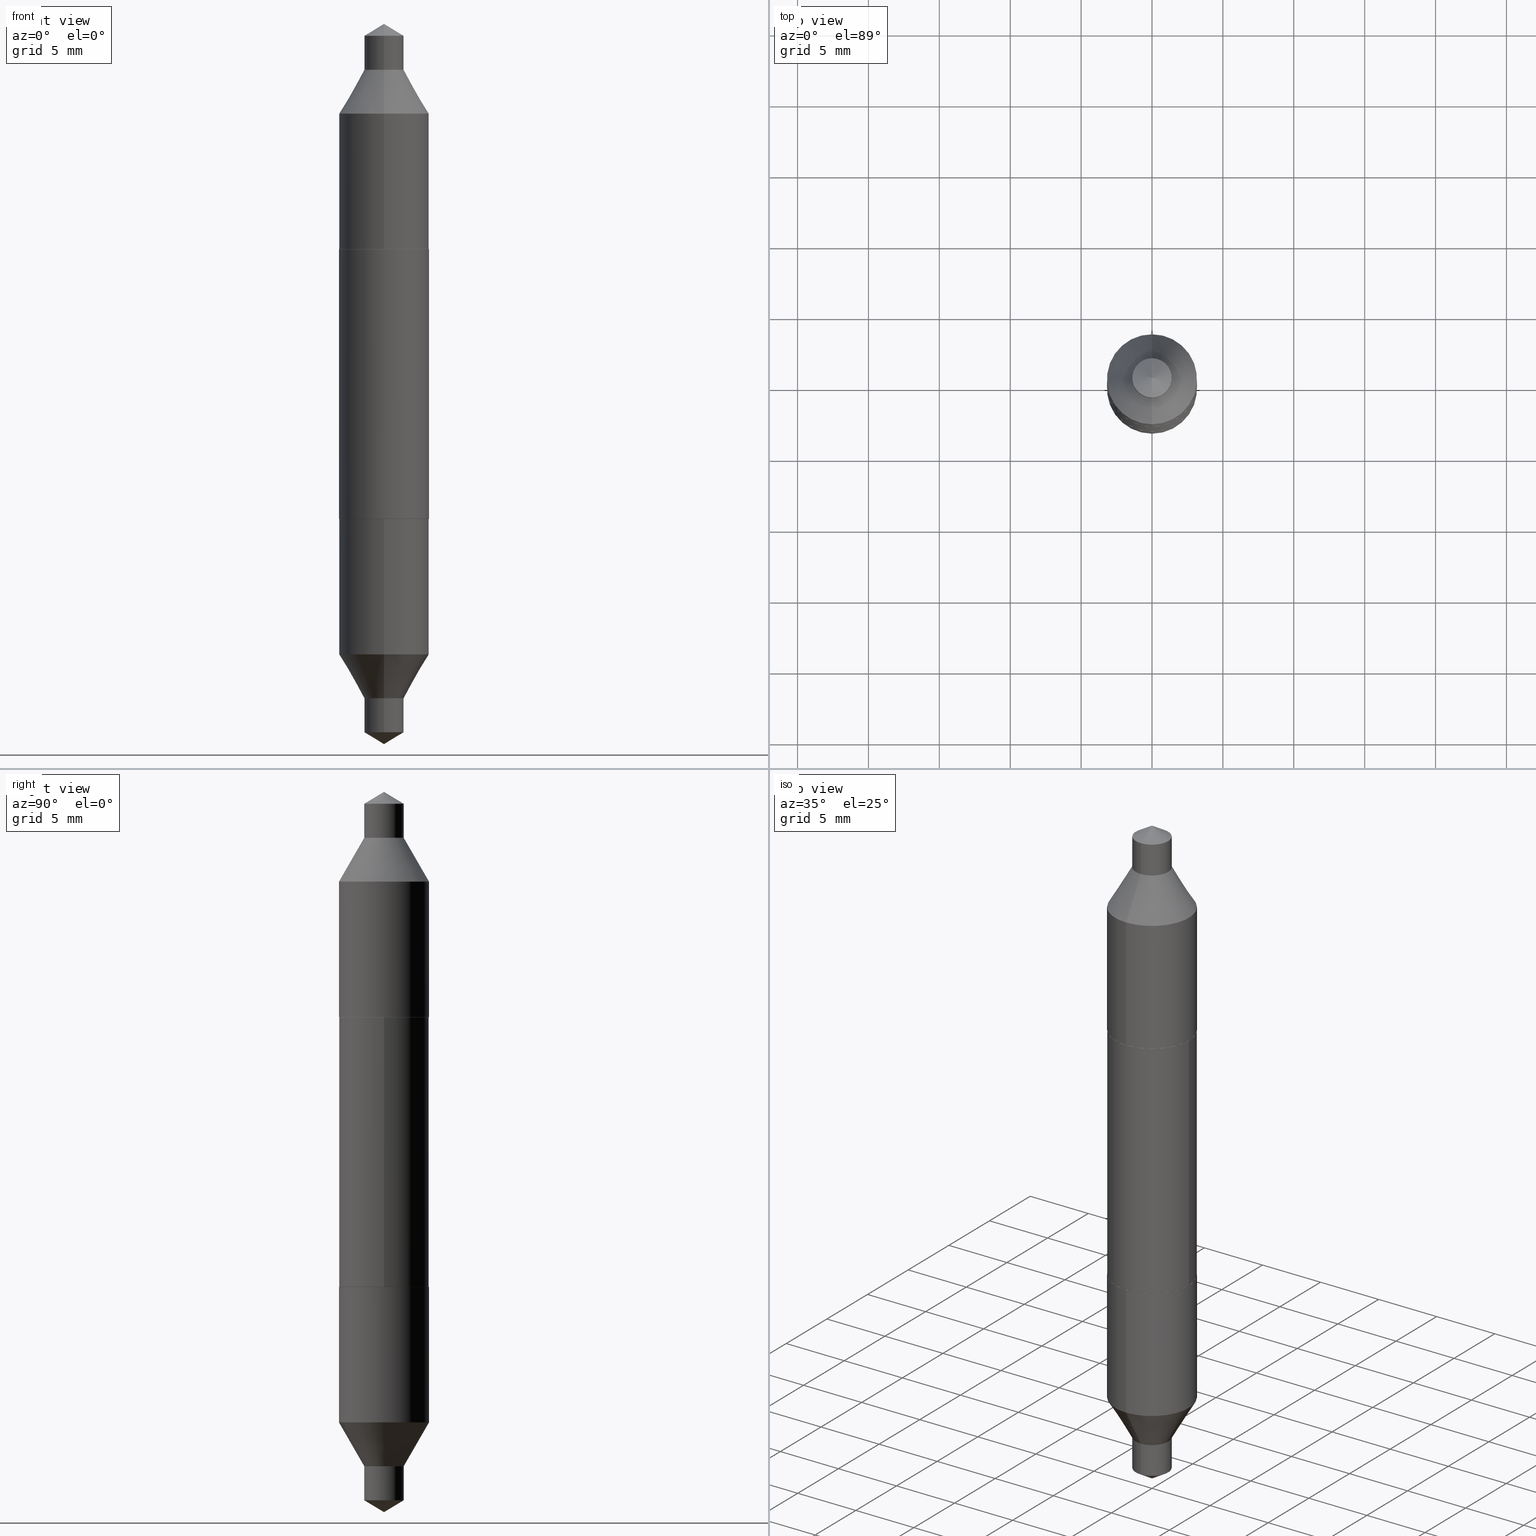
[diagram: canonical four-view strip — front | top / right | iso, engineering-drawing reading convention]
A machine part, canonical four-view strip (front | top / right | iso — engineering-drawing reading convention). The complete STEP part file that produces these views, byte-faithful:
ISO-10303-21;
HEADER;
FILE_DESCRIPTION (( 'STEP AP203' ),
    '1' );
FILE_NAME ('57019.STEP',
    '2024-04-19T15:17:33',
    ( '' ),
    ( '' ),
    'SwSTEP 2.0',
    'SolidWorks 2023',
    '' );
FILE_SCHEMA (( 'CONFIG_CONTROL_DESIGN' ));
ENDSEC;

DATA;
#1 = CARTESIAN_POINT ( 'NONE',  ( 2.454421026224126221E-29, -3.478745012132013039E-15, -1.000000000000000000 ) ) ;
#2 = VERTEX_POINT ( 'NONE', #68 ) ;
#3 = DIRECTION ( 'NONE',  ( -0.7071067811865474617, 2.382254525458707609E-15, -0.7071067811865474617 ) ) ;
#4 = ADVANCED_FACE ( 'NONE', ( #543 ), #602, .T. ) ;
#5 = CARTESIAN_POINT ( 'NONE',  ( -2.129490560523995086E-29, 3.053004212445988016E-15, 0.8726000000000000423 ) ) ;
#6 = DIRECTION ( 'NONE',  ( 1.000000000000000000, -6.982962677686265922E-15, 0.000000000000000000 ) ) ;
#7 = DIRECTION ( 'NONE',  ( 2.436575076777671012E-29, -3.504217665554278126E-15, -1.000000000000000000 ) ) ;
#8 = VERTEX_POINT ( 'NONE', #565 ) ;
#9 = CARTESIAN_POINT ( 'NONE',  ( 3.752692404780801988E-16, 0.05470000000000304480, 0.8725999999999998202 ) ) ;
#10 = CONICAL_SURFACE ( 'NONE', #371, 0.05469999999999999168, 0.5235987755982929315 ) ;
#11 = DIRECTION ( 'NONE',  ( -6.982962677686266711E-15, -1.000000000000000000, 3.278217592397114284E-15 ) ) ;
#12 = LOCAL_TIME ( 11, 17, 33.00000000000000000, #514 ) ;
#13 = PLANE ( 'NONE',  #268 ) ;
#14 = LINE ( 'NONE', #218, #312 ) ;
#15 = EDGE_LOOP ( 'NONE', ( #408, #20, #123 ) ) ;
#16 = APPROVAL_STATUS ( 'not_yet_approved' ) ;
#17 = CARTESIAN_POINT ( 'NONE',  ( -0.1245000000000000689, -4.246797960448542243E-16, -0.3749999999999999445 ) ) ;
#18 = EDGE_CURVE ( 'NONE', #168, #692, #508, .T. ) ;
#19 = ORIENTED_EDGE ( 'NONE', *, *, #227, .T. ) ;
#20 = ORIENTED_EDGE ( 'NONE', *, *, #592, .T. ) ;
#21 = COORDINATED_UNIVERSAL_TIME_OFFSET ( 5, 0, .BEHIND. ) ;
#22 = ORIENTED_EDGE ( 'NONE', *, *, #580, .F. ) ;
#23 = CIRCLE ( 'NONE', #454, 0.1250000000000000278 ) ;
#24 = DIRECTION ( 'NONE',  ( 3.552713678800442554E-15, 0.4999999999999978351, 0.8660254037844399289 ) ) ;
#25 = AXIS2_PLACEMENT_3D ( 'NONE', #523, #422, #203 ) ;
#26 = EDGE_CURVE ( 'NONE', #323, #437, #141, .T. ) ;
#27 = ORIENTED_EDGE ( 'NONE', *, *, #496, .T. ) ;
#28 = DIRECTION ( 'NONE',  ( -2.438088387897960049E-29, 3.491481338843145188E-15, 1.000000000000000000 ) ) ;
#29 = ORIENTED_EDGE ( 'NONE', *, *, #87, .T. ) ;
#30 = ORIENTED_EDGE ( 'NONE', *, *, #685, .T. ) ;
#31 = APPROVAL_STATUS ( 'not_yet_approved' ) ;
#32 = ORIENTED_EDGE ( 'NONE', *, *, #199, .T. ) ;
#33 = VECTOR ( 'NONE', #267, 39.37007874015748143 ) ;
#34 = VECTOR ( 'NONE', #317, 39.37007874015748143 ) ;
#35 = CYLINDRICAL_SURFACE ( 'NONE', #450, 0.1250000000000000278 ) ;
#36 = CARTESIAN_POINT ( 'NONE',  ( 0.000000000000000000, 0.000000000000000000, 0.000000000000000000 ) ) ;
#37 = ADVANCED_FACE ( 'NONE', ( #341 ), #35, .T. ) ;
#38 = DIRECTION ( 'NONE',  ( 1.000000000000000000, -6.982962677686265922E-15, 0.000000000000000000 ) ) ;
#39 = APPROVAL_DATE_TIME ( #91, #401 ) ;
#40 = DIRECTION ( 'NONE',  ( -6.982962677686266711E-15, -1.000000000000000000, 3.278217592397114284E-15 ) ) ;
#41 = ORIENTED_EDGE ( 'NONE', *, *, #628, .T. ) ;
#42 = AXIS2_PLACEMENT_3D ( 'NONE', #54, #597, #270 ) ;
#43 = ADVANCED_FACE ( 'NONE', ( #352 ), #686, .T. ) ;
#44 = CARTESIAN_POINT ( 'NONE',  ( 0.1245000000000000689, 4.399266486942387195E-16, 0.3749999999999999445 ) ) ;
#45 = UNCERTAINTY_MEASURE_WITH_UNIT (LENGTH_MEASURE( 1.000000000000000082E-05 ), #189, 'distance_accuracy_value', 'NONE');
#46 = CYLINDRICAL_SURFACE ( 'NONE', #230, 0.05469999999999999168 ) ;
#47 = ORIENTED_EDGE ( 'NONE', *, *, #115, .T. ) ;
#48 = CLOSED_SHELL ( 'NONE', ( #398, #535, #324, #477, #37, #517, #513, #399, #276 ) ) ;
#49 = CYLINDRICAL_SURFACE ( 'NONE', #680, 0.05469999999999999168 ) ;
#50 = DIRECTION ( 'NONE',  ( -5.985567269335932602E-15, -0.8571673007021159973, -0.5150380749100479383 ) ) ;
#51 = AXIS2_PLACEMENT_3D ( 'NONE', #515, #458, #148 ) ;
#52 = DIRECTION ( 'NONE',  ( -6.982962677686265922E-15, -1.000000000000000000, 3.278217592397115862E-15 ) ) ;
#53 = EDGE_CURVE ( 'NONE', #287, #692, #595, .T. ) ;
#54 = CARTESIAN_POINT ( 'NONE',  ( 9.170508023194260837E-30, -1.309305502066179347E-15, -0.3749999999999999445 ) ) ;
#55 = DIRECTION ( 'NONE',  ( -1.000000000000000000, 6.982962677686265922E-15, -4.876176775795935793E-29 ) ) ;
#56 = DIRECTION ( 'NONE',  ( -6.982962677686265922E-15, -1.000000000000000000, 2.497118824190368833E-15 ) ) ;
#57 = FACE_OUTER_BOUND ( 'NONE', #278, .T. ) ;
#58 = DIRECTION ( 'NONE',  ( 2.436575076777671012E-29, -3.504217665554278126E-15, -1.000000000000000000 ) ) ;
#59 = FACE_OUTER_BOUND ( 'NONE', #237, .T. ) ;
#60 = ADVANCED_FACE ( 'NONE', ( #259 ), #85, .T. ) ;
#61 = VERTEX_POINT ( 'NONE', #66 ) ;
#62 = DIRECTION ( 'NONE',  ( 2.436575076777671012E-29, -3.504217665554278126E-15, -1.000000000000000000 ) ) ;
#63 = AXIS2_PLACEMENT_3D ( 'NONE', #155, #315, #55 ) ;
#64 = DIRECTION ( 'NONE',  ( -2.454362535592602182E-29, 3.478745012132013433E-15, 1.000000000000000000 ) ) ;
#65 = FACE_OUTER_BOUND ( 'NONE', #334, .T. ) ;
#66 = CARTESIAN_POINT ( 'NONE',  ( 8.881784197001435734E-16, 0.1249999999999986816, -0.3750000000000003886 ) ) ;
#67 = ORIENTED_EDGE ( 'NONE', *, *, #104, .F. ) ;
#68 = CARTESIAN_POINT ( 'NONE',  ( 3.886668764607984577E-16, 0.05469999999999661938, -0.9671329241391928289 ) ) ;
#69 = SECURITY_CLASSIFICATION_LEVEL ( 'unclassified' ) ;
#70 = ORIENTED_EDGE ( 'NONE', *, *, #143, .T. ) ;
#71 = DIRECTION ( 'NONE',  ( 0.7071067811865474617, -7.406550393246804314E-15, -0.7071067811865474617 ) ) ;
#72 = DATE_AND_TIME ( #331, #666 ) ;
#73 = EDGE_LOOP ( 'NONE', ( #86, #183, #379, #156 ) ) ;
#74 = ADVANCED_FACE ( 'NONE', ( #263 ), #170, .T. ) ;
#75 = EDGE_LOOP ( 'NONE', ( #655, #307 ) ) ;
#76 = FACE_OUTER_BOUND ( 'NONE', #385, .T. ) ;
#77 = APPLICATION_PROTOCOL_DEFINITION ( 'international standard', 'config_control_design', 1994, #164 ) ;
#78 = EDGE_CURVE ( 'NONE', #205, #664, #469, .T. ) ;
#79 = VERTEX_POINT ( 'NONE', #667 ) ;
#80 = VERTEX_POINT ( 'NONE', #606 ) ;
#81 = APPLICATION_PROTOCOL_DEFINITION ( 'international standard', 'config_control_design', 1994, #119 ) ;
#82 = ORIENTED_EDGE ( 'NONE', *, *, #26, .F. ) ;
#83 = ORIENTED_EDGE ( 'NONE', *, *, #106, .F. ) ;
#84 = ORIENTED_EDGE ( 'NONE', *, *, #106, .T. ) ;
#85 = CONICAL_SURFACE ( 'NONE', #658, 65.52281426576900003, 1.029744258676658308 ) ;
#86 = ORIENTED_EDGE ( 'NONE', *, *, #640, .F. ) ;
#87 = EDGE_CURVE ( 'NONE', #2, #79, #587, .T. ) ;
#88 = DIRECTION ( 'NONE',  ( -2.445468806185136597E-29, 3.491481338843145583E-15, 1.000000000000000000 ) ) ;
#89 = ORGANIZATION ( 'UNSPECIFIED', 'UNSPECIFIED', '' ) ;
#90 = DIRECTION ( 'NONE',  ( 2.436575076777671012E-29, -3.504217665554278126E-15, -1.000000000000000000 ) ) ;
#91 = DATE_AND_TIME ( #459, #12 ) ;
#92 = CARTESIAN_POINT ( 'NONE',  ( 2.370359667417557100E-29, -3.369184958434540191E-15, -0.9671329241391927178 ) ) ;
#93 = ORIENTED_EDGE ( 'NONE', *, *, #229, .F. ) ;
#94 = EDGE_CURVE ( 'NONE', #445, #326, #314, .T. ) ;
#95 = CARTESIAN_POINT ( 'NONE',  ( 9.170508023194260837E-30, -1.309305502066179347E-15, -0.3749999999999999445 ) ) ;
#96 = ORIENTED_EDGE ( 'NONE', *, *, #227, .F. ) ;
#97 = CIRCLE ( 'NONE', #190, 0.1250000000000000555 ) ;
#98 = APPROVAL_PERSON_ORGANIZATION ( #505, #294, #238 ) ;
#99 = CARTESIAN_POINT ( 'NONE',  ( -2.359827127416466631E-29, 3.384268155191050282E-15, 0.9671329241391927178 ) ) ;
#100 = CARTESIAN_POINT ( 'NONE',  ( 9.170508023194260837E-30, -1.309305502066179347E-15, -0.3749999999999999445 ) ) ;
#101 = ORIENTED_EDGE ( 'NONE', *, *, #484, .T. ) ;
#102 = CARTESIAN_POINT ( 'NONE',  ( 9.170508023194260837E-30, -1.309305502066179347E-15, -0.3749999999999999445 ) ) ;
#103 = DIRECTION ( 'NONE',  ( -2.436575076777671012E-29, 3.504217665554278126E-15, 1.000000000000000000 ) ) ;
#104 = EDGE_CURVE ( 'NONE', #105, #79, #364, .T. ) ;
#105 = VERTEX_POINT ( 'NONE', #648 ) ;
#106 = EDGE_CURVE ( 'NONE', #391, #269, #541, .T. ) ;
#107 = DIRECTION ( 'NONE',  ( -2.454362535592602182E-29, 3.478745012132013039E-15, 1.000000000000000000 ) ) ;
#108 = ORIENTED_EDGE ( 'NONE', *, *, #262, .F. ) ;
#109 = AXIS2_PLACEMENT_3D ( 'NONE', #649, #657, #319 ) ;
#110 = AXIS2_PLACEMENT_3D ( 'NONE', #301, #253, #468 ) ;
#111 = DIRECTION ( 'NONE',  ( -2.445468806185136597E-29, 3.491481338843145583E-15, 1.000000000000000000 ) ) ;
#112 = CARTESIAN_POINT ( 'NONE',  ( -2.129490560523995086E-29, 3.053004212445988016E-15, 0.8726000000000000423 ) ) ;
#113 = FACE_OUTER_BOUND ( 'NONE', #455, .T. ) ;
#114 = PRODUCT_DEFINITION ( 'UNKNOWN', '', #293, #297 ) ;
#115 = EDGE_CURVE ( 'NONE', #79, #388, #439, .T. ) ;
#116 = ORIENTED_EDGE ( 'NONE', *, *, #316, .F. ) ;
#117 = DIRECTION ( 'NONE',  ( -2.454362535592602182E-29, 3.478745012132013039E-15, 1.000000000000000000 ) ) ;
#118 = DIRECTION ( 'NONE',  ( 6.982962677686265922E-15, 1.000000000000000000, -3.504217665554278126E-15 ) ) ;
#119 = APPLICATION_CONTEXT ( 'configuration controlled 3d designs of mechanical parts and assemblies' ) ;
#120 = CARTESIAN_POINT ( 'NONE',  ( 3.752692404780935108E-16, 0.05470000000000129620, 0.3749999999999997780 ) ) ;
#121 = ORIENTED_EDGE ( 'NONE', *, *, #496, .F. ) ;
#122 = AXIS2_PLACEMENT_3D ( 'NONE', #524, #656, #375 ) ;
#123 = ORIENTED_EDGE ( 'NONE', *, *, #448, .F. ) ;
#124 = CALENDAR_DATE ( 2024, 19, 4 ) ;
#125 = EDGE_CURVE ( 'NONE', #8, #80, #274, .T. ) ;
#126 = LINE ( 'NONE', #344, #697 ) ;
#127 = VERTEX_POINT ( 'NONE', #670 ) ;
#128 = FACE_OUTER_BOUND ( 'NONE', #668, .T. ) ;
#129 = ADVANCED_FACE ( 'NONE', ( #128 ), #525, .T. ) ;
#130 = ORIENTED_EDGE ( 'NONE', *, *, #369, .T. ) ;
#131 = DATE_AND_TIME ( #393, #178 ) ;
#132 = VECTOR ( 'NONE', #173, 39.37007874015748854 ) ;
#133 = CIRCLE ( 'NONE', #252, 0.1250000000000000278 ) ;
#134 = ORIENTED_EDGE ( 'NONE', *, *, #430, .T. ) ;
#135 = CALENDAR_DATE ( 2024, 19, 4 ) ;
#136 = ADVANCED_FACE ( 'NONE', ( #76 ), #583, .T. ) ;
#137 = CARTESIAN_POINT ( 'NONE',  ( -3.819680584694478085E-16, -0.05469999999999868717, 0.3750000000000001665 ) ) ;
#138 = DIRECTION ( 'NONE',  ( 1.000000000000000000, -6.982962677686265922E-15, 4.876176775795935232E-29 ) ) ;
#139 = AXIS2_PLACEMENT_3D ( 'NONE', #281, #332, #554 ) ;
#140 = VECTOR ( 'NONE', #498, 39.37007874015748854 ) ;
#141 = LINE ( 'NONE', #402, #481 ) ;
#142 = CARTESIAN_POINT ( 'NONE',  ( -1.832805450914712624E-29, 2.626319554908296624E-15, 0.7508368282279060946 ) ) ;
#143 = EDGE_CURVE ( 'NONE', #326, #269, #23, .T. ) ;
#144 = FACE_OUTER_BOUND ( 'NONE', #15, .T. ) ;
#145 = ORIENTED_EDGE ( 'NONE', *, *, #53, .F. ) ;
#146 = MANIFOLD_SOLID_BREP ( 'Body-Move/Copy2[3]', #506 ) ;
#147 = DIRECTION ( 'NONE',  ( -6.982962677686265922E-15, -1.000000000000000000, 3.278217592397115073E-15 ) ) ;
#148 = DIRECTION ( 'NONE',  ( 1.000000000000000000, -6.982962677686265922E-15, 4.876176775795935232E-29 ) ) ;
#149 = EDGE_LOOP ( 'NONE', ( #392, #483, #449, #333 ) ) ;
#150 = CIRCLE ( 'NONE', #241, 0.05469999999999999168 ) ;
#151 = AXIS2_PLACEMENT_3D ( 'NONE', #598, #696, #482 ) ;
#152 = LINE ( 'NONE', #642, #216 ) ;
#153 = CC_DESIGN_PERSON_AND_ORGANIZATION_ASSIGNMENT ( #550, #336, ( #114 ) ) ;
#154 = EDGE_CURVE ( 'NONE', #320, #8, #212, .T. ) ;
#155 = CARTESIAN_POINT ( 'NONE',  ( 9.170508023194260837E-30, -1.309305502066179347E-15, -0.3749999999999999445 ) ) ;
#156 = ORIENTED_EDGE ( 'NONE', *, *, #421, .F. ) ;
#157 = PRODUCT_RELATED_PRODUCT_CATEGORY ( 'detail', '', ( #589 ) ) ;
#158 = CARTESIAN_POINT ( 'NONE',  ( 3.752692404780790648E-16, 0.05470000000000337786, 0.9671329241391926068 ) ) ;
#159 = CYLINDRICAL_SURFACE ( 'NONE', #360, 0.1250000000000000278 ) ;
#160 = CIRCLE ( 'NONE', #631, 0.05469999999999999168 ) ;
#161 = VECTOR ( 'NONE', #381, 39.37007874015748143 ) ;
#162 = DIRECTION ( 'NONE',  ( 6.982962677686265922E-15, 1.000000000000000000, -3.478745012132013433E-15 ) ) ;
#163 = EDGE_CURVE ( 'NONE', #672, #61, #604, .T. ) ;
#164 = APPLICATION_CONTEXT ( 'configuration controlled 3d designs of mechanical parts and assemblies' ) ;
#165 = FACE_OUTER_BOUND ( 'NONE', #432, .T. ) ;
#166 = ORIENTED_EDGE ( 'NONE', *, *, #420, .F. ) ;
#167 = DIRECTION ( 'NONE',  ( 2.436575076777671012E-29, -3.504217665554278126E-15, -1.000000000000000000 ) ) ;
#168 = VERTEX_POINT ( 'NONE', #660 ) ;
#169 = DIRECTION ( 'NONE',  ( -2.445468806185136597E-29, 3.491481338843145583E-15, 1.000000000000000000 ) ) ;
#170 = CONICAL_SURFACE ( 'NONE', #435, 0.1245000000000000689, 0.7853981633974482790 ) ;
#171 = ORIENTED_EDGE ( 'NONE', *, *, #555, .F. ) ;
#172 = DIRECTION ( 'NONE',  ( -6.982962677686265922E-15, -1.000000000000000000, 2.497118824190368833E-15 ) ) ;
#173 = DIRECTION ( 'NONE',  ( -3.491481338843076163E-15, -0.4999999999999979461, -0.8660254037844399289 ) ) ;
#174 = EDGE_LOOP ( 'NONE', ( #224, #130, #19, #516 ) ) ;
#175 = ORIENTED_EDGE ( 'NONE', *, *, #125, .F. ) ;
#176 = CIRCLE ( 'NONE', #568, 0.05469999999999999168 ) ;
#177 = MECHANICAL_CONTEXT ( 'NONE', #164, 'mechanical' ) ;
#178 = LOCAL_TIME ( 11, 17, 33.00000000000000000, #235 ) ;
#179 = FACE_OUTER_BOUND ( 'NONE', #562, .T. ) ;
#180 = EDGE_CURVE ( 'NONE', #127, #320, #160, .T. ) ;
#181 = ORIENTED_EDGE ( 'NONE', *, *, #640, .T. ) ;
#182 = CARTESIAN_POINT ( 'NONE',  ( -9.170508023194260837E-30, 1.309305502066179347E-15, 0.3749999999999999445 ) ) ;
#183 = ORIENTED_EDGE ( 'NONE', *, *, #262, .T. ) ;
#184 = ORIENTED_EDGE ( 'NONE', *, *, #26, .T. ) ;
#185 = CARTESIAN_POINT ( 'NONE',  ( -2.436633567409194491E-29, 3.504217665554278126E-15, 1.000000000000000000 ) ) ;
#186 = ORIENTED_EDGE ( 'NONE', *, *, #610, .F. ) ;
#187 = VECTOR ( 'NONE', #71, 39.37007874015748854 ) ;
#188 = ORIENTED_EDGE ( 'NONE', *, *, #163, .T. ) ;
#189 =( CONVERSION_BASED_UNIT ( 'INCH', #621 ) LENGTH_UNIT ( ) NAMED_UNIT ( #622 ) );
#190 = AXIS2_PLACEMENT_3D ( 'NONE', #460, #638, #579 ) ;
#191 = EDGE_CURVE ( 'NONE', #61, #672, #578, .T. ) ;
#192 = CARTESIAN_POINT ( 'NONE',  ( -8.728703347107924107E-16, -0.1249999999999986816, 0.3750000000000003886 ) ) ;
#193 = DIRECTION ( 'NONE',  ( -3.491481338843118367E-15, -0.4999999999999918954, 0.8660254037844432595 ) ) ;
#194 = CARTESIAN_POINT ( 'NONE',  ( -9.170508023194260837E-30, 1.309305502066179347E-15, 0.3749999999999999445 ) ) ;
#195 = ADVANCED_FACE ( 'NONE', ( #534 ), #13, .F. ) ;
#196 = DIRECTION ( 'NONE',  ( -2.454362535592602182E-29, 3.478745012132013039E-15, 1.000000000000000000 ) ) ;
#197 = CONICAL_SURFACE ( 'NONE', #403, 0.1245000000000000689, 0.7853981633974482790 ) ;
#198 = CONICAL_SURFACE ( 'NONE', #405, 0.05469999999999999168, 0.5235987755982929315 ) ;
#199 = EDGE_CURVE ( 'NONE', #664, #303, #272, .T. ) ;
#200 = CARTESIAN_POINT ( 'NONE',  ( -0.1245000000000000689, 2.164279756953467483E-15, 0.3749999999999999445 ) ) ;
#201 = ORIENTED_EDGE ( 'NONE', *, *, #125, .T. ) ;
#202 = DIRECTION ( 'NONE',  ( 2.436575076777671012E-29, -3.504217665554278126E-15, -1.000000000000000000 ) ) ;
#203 = DIRECTION ( 'NONE',  ( -6.982962677686265922E-15, -1.000000000000000000, 2.497118824190368833E-15 ) ) ;
#204 = DIRECTION ( 'NONE',  ( -2.454362535592602182E-29, 3.478745012132013039E-15, 1.000000000000000000 ) ) ;
#205 = VERTEX_POINT ( 'NONE', #434 ) ;
#206 = CARTESIAN_POINT ( 'NONE',  ( -3.819680584694150215E-16, -0.05470000000000337093, -0.9671329241391926068 ) ) ;
#207 = ORIENTED_EDGE ( 'NONE', *, *, #154, .T. ) ;
#208 = CC_DESIGN_DATE_AND_TIME_ASSIGNMENT ( #131, #288, ( #114 ) ) ;
#209 = EDGE_CURVE ( 'NONE', #127, #323, #662, .T. ) ;
#210 = AXIS2_PLACEMENT_3D ( 'NONE', #142, #354, #40 ) ;
#211 = CARTESIAN_POINT ( 'NONE',  ( 9.170508023194260837E-30, -1.309305502066179347E-15, -0.3749999999999999445 ) ) ;
#212 = LINE ( 'NONE', #532, #679 ) ;
#213 = DIRECTION ( 'NONE',  ( 6.090539988449793424E-15, 0.8571673007021159973, 0.5150380749100479383 ) ) ;
#214 = DIRECTION ( 'NONE',  ( -2.454362535592602182E-29, 3.478745012132013039E-15, 1.000000000000000000 ) ) ;
#215 = CARTESIAN_POINT ( 'NONE',  ( 2.447692238537003063E-29, -3.488297257165362447E-15, -1.000000000000000000 ) ) ;
#216 = VECTOR ( 'NONE', #585, 39.37007874015748143 ) ;
#217 = DIRECTION ( 'NONE',  ( 2.445468806185136597E-29, -3.491481338843145583E-15, -1.000000000000000000 ) ) ;
#218 = CARTESIAN_POINT ( 'NONE',  ( -3.819680584694295168E-16, -0.05470000000000129620, -0.3749999999999997780 ) ) ;
#219 = ORIENTED_EDGE ( 'NONE', *, *, #296, .F. ) ;
#220 =( NAMED_UNIT ( * ) PLANE_ANGLE_UNIT ( ) SI_UNIT ( $, .RADIAN. ) );
#221 = DIRECTION ( 'NONE',  ( -0.7071067811865474617, 7.493145998870352582E-15, 0.7071067811865474617 ) ) ;
#222 = DIRECTION ( 'NONE',  ( -2.445468806185136597E-29, 3.491481338843145583E-15, 1.000000000000000000 ) ) ;
#223 = EDGE_LOOP ( 'NONE', ( #501, #659 ) ) ;
#224 = ORIENTED_EDGE ( 'NONE', *, *, #199, .F. ) ;
#225 = PERSON_AND_ORGANIZATION_ROLE ( 'classification_officer' ) ;
#226 = CARTESIAN_POINT ( 'NONE',  ( 0.1245000000000000689, -2.178684355438120073E-15, -0.3749999999999999445 ) ) ;
#227 = EDGE_CURVE ( 'NONE', #205, #492, #495, .T. ) ;
#228 = DIRECTION ( 'NONE',  ( -6.982962677686263555E-15, -1.000000000000000000, 3.535573257325055289E-15 ) ) ;
#229 = EDGE_CURVE ( 'NONE', #388, #438, #474, .T. ) ;
#230 = AXIS2_PLACEMENT_3D ( 'NONE', #400, #574, #357 ) ;
#231 = ORIENTED_EDGE ( 'NONE', *, *, #154, .F. ) ;
#232 = ORIENTED_EDGE ( 'NONE', *, *, #163, .F. ) ;
#233 = DATE_AND_TIME ( #135, #284 ) ;
#234 = ORIENTED_EDGE ( 'NONE', *, *, #555, .T. ) ;
#235 = COORDINATED_UNIVERSAL_TIME_OFFSET ( 5, 0, .BEHIND. ) ;
#236 = PRODUCT_DEFINITION_SHAPE ( 'NONE', 'NONE',  #114 ) ;
#237 = EDGE_LOOP ( 'NONE', ( #611, #673, #251 ) ) ;
#238 = APPROVAL_ROLE ( '' ) ;
#239 = EDGE_LOOP ( 'NONE', ( #116, #207, #41, #676 ) ) ;
#240 = DIRECTION ( 'NONE',  ( -1.000000000000000000, 6.982962677686265922E-15, -4.876176775795935793E-29 ) ) ;
#241 = AXIS2_PLACEMENT_3D ( 'NONE', #295, #571, #520 ) ;
#242 = CIRCLE ( 'NONE', #322, 0.1250000000000000000 ) ;
#243 = DIRECTION ( 'NONE',  ( -2.454362535592602182E-29, 3.478745012132013039E-15, 1.000000000000000000 ) ) ;
#244 = VECTOR ( 'NONE', #620, 39.37007874015748143 ) ;
#245 = FACE_OUTER_BOUND ( 'NONE', #643, .T. ) ;
#246 = EDGE_CURVE ( 'NONE', #168, #287, #126, .T. ) ;
#247 = DIRECTION ( 'NONE',  ( -2.436575076777671012E-29, 3.504217665554278126E-15, 1.000000000000000000 ) ) ;
#248 = VECTOR ( 'NONE', #24, 39.37007874015748854 ) ;
#249 = LINE ( 'NONE', #465, #528 ) ;
#250 = CONICAL_SURFACE ( 'NONE', #25, 0.05469999999999999168, 0.5235987755982929315 ) ;
#251 = ORIENTED_EDGE ( 'NONE', *, *, #363, .F. ) ;
#252 = AXIS2_PLACEMENT_3D ( 'NONE', #647, #169, #309 ) ;
#253 = DIRECTION ( 'NONE',  ( -2.454362535592602182E-29, 3.478745012132013039E-15, 1.000000000000000000 ) ) ;
#254 = CARTESIAN_POINT ( 'NONE',  ( -8.728703347107652936E-16, -0.1250000000000026923, -0.7508368282279057615 ) ) ;
#255 = FACE_OUTER_BOUND ( 'NONE', #239, .T. ) ;
#256 = DIRECTION ( 'NONE',  ( -6.982962677686265922E-15, -1.000000000000000000, 3.745678236285553052E-15 ) ) ;
#257 = CIRCLE ( 'NONE', #282, 0.05469999999999999168 ) ;
#258 = SECURITY_CLASSIFICATION ( '', '', #69 ) ;
#259 = FACE_OUTER_BOUND ( 'NONE', #416, .T. ) ;
#260 = CYLINDRICAL_SURFACE ( 'NONE', #507, 0.1250000000000000278 ) ;
#261 = PLANE ( 'NONE',  #63 ) ;
#262 = EDGE_CURVE ( 'NONE', #692, #320, #328, .T. ) ;
#263 = FACE_OUTER_BOUND ( 'NONE', #174, .T. ) ;
#264 = CARTESIAN_POINT ( 'NONE',  ( -9.170508023194260837E-30, 1.309305502066179347E-15, 0.3749999999999999445 ) ) ;
#265 = ORIENTED_EDGE ( 'NONE', *, *, #484, .F. ) ;
#266 = LINE ( 'NONE', #1, #605 ) ;
#267 = DIRECTION ( 'NONE',  ( -2.445468806185136877E-29, 3.491481338843145188E-15, 1.000000000000000000 ) ) ;
#268 = AXIS2_PLACEMENT_3D ( 'NONE', #429, #599, #118 ) ;
#269 = VERTEX_POINT ( 'NONE', #546 ) ;
#270 = DIRECTION ( 'NONE',  ( -6.982962677686265922E-15, -1.000000000000000000, 3.278217592397115862E-15 ) ) ;
#271 = PERSON_AND_ORGANIZATION ( #548, #89 ) ;
#272 = LINE ( 'NONE', #17, #338 ) ;
#273 = ORIENTED_EDGE ( 'NONE', *, *, #305, .T. ) ;
#274 = LINE ( 'NONE', #386, #616 ) ;
#275 =( LENGTH_UNIT ( ) NAMED_UNIT ( * ) SI_UNIT ( $, .METRE. ) );
#276 = ADVANCED_FACE ( 'NONE', ( #179 ), #518, .T. ) ;
#277 = VECTOR ( 'NONE', #593, 39.37007874015748143 ) ;
#278 = EDGE_LOOP ( 'NONE', ( #537, #502, #84, #675 ) ) ;
#279 = DIRECTION ( 'NONE',  ( -6.982962677686263555E-15, -1.000000000000000000, 3.535573257325055289E-15 ) ) ;
#280 = DATE_TIME_ROLE ( 'classification_date' ) ;
#281 = CARTESIAN_POINT ( 'NONE',  ( 1.839490633017951177E-29, -2.616745993639524273E-15, -0.7508368282279060946 ) ) ;
#282 = AXIS2_PLACEMENT_3D ( 'NONE', #92, #243, #397 ) ;
#283 = EDGE_LOOP ( 'NONE', ( #108, #145, #549, #325 ) ) ;
#284 = LOCAL_TIME ( 11, 17, 33.00000000000000000, #21 ) ;
#285 = DIRECTION ( 'NONE',  ( 2.436575076777671012E-29, -3.504217665554278126E-15, -1.000000000000000000 ) ) ;
#286 = EDGE_CURVE ( 'NONE', #303, #326, #479, .T. ) ;
#287 = VERTEX_POINT ( 'NONE', #487 ) ;
#288 = DATE_TIME_ROLE ( 'creation_date' ) ;
#289 = AXIS2_PLACEMENT_3D ( 'NONE', #99, #247, #584 ) ;
#290 = EDGE_LOOP ( 'NONE', ( #134, #273 ) ) ;
#291 = VECTOR ( 'NONE', #7, 39.37007874015748143 ) ;
#292 = CARTESIAN_POINT ( 'NONE',  ( 8.881784197001394318E-16, 0.1249999999999974742, -0.7508368282279065387 ) ) ;
#293 = PRODUCT_DEFINITION_FORMATION_WITH_SPECIFIED_SOURCE ( 'ANY', '', #589, .NOT_KNOWN. ) ;
#294 = APPROVAL ( #31, 'UNSPECIFIED' ) ;
#295 = CARTESIAN_POINT ( 'NONE',  ( 2.370359667417557100E-29, -3.369184958434540191E-15, -0.9671329241391927178 ) ) ;
#296 = EDGE_CURVE ( 'NONE', #701, #105, #14, .T. ) ;
#297 = DESIGN_CONTEXT ( 'detailed design', #119, 'design' ) ;
#298 = LINE ( 'NONE', #567, #689 ) ;
#299 = ORIENTED_EDGE ( 'NONE', *, *, #363, .T. ) ;
#300 = CARTESIAN_POINT ( 'NONE',  ( 9.348824240373669037E-28, -1.344618838724851696E-13, -38.37007874015748143 ) ) ;
#301 = CARTESIAN_POINT ( 'NONE',  ( -9.417741889610851748E-28, 1.334749439099187532E-13, 38.37007874015748143 ) ) ;
#302 = VECTOR ( 'NONE', #90, 39.37007874015748143 ) ;
#303 = VERTEX_POINT ( 'NONE', #366 ) ;
#304 = CC_DESIGN_APPROVAL ( #684, ( #114 ) ) ;
#305 = EDGE_CURVE ( 'NONE', #445, #391, #415, .T. ) ;
#306 = DIRECTION ( 'NONE',  ( 1.000000000000000000, -6.982962677686265922E-15, 0.000000000000000000 ) ) ;
#307 = ORIENTED_EDGE ( 'NONE', *, *, #369, .F. ) ;
#308 = DIRECTION ( 'NONE',  ( -2.445468806185136597E-29, 3.491481338843145583E-15, 1.000000000000000000 ) ) ;
#309 = DIRECTION ( 'NONE',  ( 1.000000000000000000, -6.982962677686267499E-15, 0.000000000000000000 ) ) ;
#310 = DIRECTION ( 'NONE',  ( -6.982962677686265922E-15, -1.000000000000000000, 2.497118824190368833E-15 ) ) ;
#311 = ORIENTED_EDGE ( 'NONE', *, *, #286, .F. ) ;
#312 = VECTOR ( 'NONE', #64, 39.37007874015748143 ) ;
#313 = AXIS2_PLACEMENT_3D ( 'NONE', #211, #368, #162 ) ;
#314 = LINE ( 'NONE', #531, #683 ) ;
#315 = DIRECTION ( 'NONE',  ( 2.438088387897960049E-29, -3.491481338843145188E-15, -1.000000000000000000 ) ) ;
#316 = EDGE_CURVE ( 'NONE', #320, #127, #176, .T. ) ;
#317 = DIRECTION ( 'NONE',  ( -2.454362535592602182E-29, 3.478745012132013433E-15, 1.000000000000000000 ) ) ;
#318 = CARTESIAN_POINT ( 'NONE',  ( -0.1250000000000000278, 8.881784197001254296E-16, -6.148668862818633629E-30 ) ) ;
#319 = DIRECTION ( 'NONE',  ( 1.000000000000000000, -6.982962677686265922E-15, 0.000000000000000000 ) ) ;
#320 = VERTEX_POINT ( 'NONE', #9 ) ;
#321 = FACE_OUTER_BOUND ( 'NONE', #75, .T. ) ;
#322 = AXIS2_PLACEMENT_3D ( 'NONE', #264, #423, #52 ) ;
#323 = VERTEX_POINT ( 'NONE', #378 ) ;
#324 = ADVANCED_FACE ( 'NONE', ( #59 ), #650, .T. ) ;
#325 = ORIENTED_EDGE ( 'NONE', *, *, #180, .T. ) ;
#326 = VERTEX_POINT ( 'NONE', #413 ) ;
#327 = DIRECTION ( 'NONE',  ( 2.436575076777671012E-29, -3.504217665554278126E-15, -1.000000000000000000 ) ) ;
#328 = LINE ( 'NONE', #120, #291 ) ;
#329 = ORIENTED_EDGE ( 'NONE', *, *, #191, .T. ) ;
#330 = CARTESIAN_POINT ( 'NONE',  ( 0.1245000000000000689, 4.399266486942387195E-16, 0.3749999999999999445 ) ) ;
#331 = CALENDAR_DATE ( 2024, 19, 4 ) ;
#332 = DIRECTION ( 'NONE',  ( -2.454362535592602182E-29, 3.478745012132013039E-15, 1.000000000000000000 ) ) ;
#333 = ORIENTED_EDGE ( 'NONE', *, *, #572, .F. ) ;
#334 = EDGE_LOOP ( 'NONE', ( #175, #121, #184, #419 ) ) ;
#335 = DIRECTION ( 'NONE',  ( 1.000000000000000000, -6.982962677686265922E-15, 0.000000000000000000 ) ) ;
#336 = PERSON_AND_ORGANIZATION_ROLE ( 'creator' ) ;
#337 = ADVANCED_FACE ( 'NONE', ( #255 ), #250, .T. ) ;
#338 = VECTOR ( 'NONE', #221, 39.37007874015748854 ) ;
#339 = ORIENTED_EDGE ( 'NONE', *, *, #246, .T. ) ;
#340 =( NAMED_UNIT ( * ) SI_UNIT ( $, .STERADIAN. ) SOLID_ANGLE_UNIT ( ) );
#341 = FACE_OUTER_BOUND ( 'NONE', #453, .T. ) ;
#342 = APPROVAL_DATE_TIME ( #233, #294 ) ;
#343 = CARTESIAN_POINT ( 'NONE',  ( 2.138341600030304914E-29, -3.040329020103069038E-15, -0.8726000000000000423 ) ) ;
#344 = CARTESIAN_POINT ( 'NONE',  ( -2.443245373833270130E-29, 3.494665420520928324E-15, 1.000000000000000000 ) ) ;
#345 = CARTESIAN_POINT ( 'NONE',  ( 9.170508023194260837E-30, -1.309305502066179347E-15, -0.3749999999999999445 ) ) ;
#346 = ADVANCED_BREP_SHAPE_REPRESENTATION ( '57019', ( #370, #625, #146, #519 ), #653 ) ;
#347 = ADVANCED_FACE ( 'NONE', ( #411 ), #260, .T. ) ;
#348 = AXIS2_PLACEMENT_3D ( 'NONE', #36, #629, #138 ) ;
#349 = CYLINDRICAL_SURFACE ( 'NONE', #590, 0.1250000000000000278 ) ;
#350 = APPROVAL_PERSON_ORGANIZATION ( #353, #401, #623 ) ;
#351 = ADVANCED_FACE ( 'NONE', ( #65 ), #159, .T. ) ;
#352 = FACE_OUTER_BOUND ( 'NONE', #73, .T. ) ;
#353 = PERSON_AND_ORGANIZATION ( #548, #89 ) ;
#354 = DIRECTION ( 'NONE',  ( -2.436575076777671012E-29, 3.504217665554278126E-15, 1.000000000000000000 ) ) ;
#355 = ORIENTED_EDGE ( 'NONE', *, *, #143, .F. ) ;
#356 = AXIS2_PLACEMENT_3D ( 'NONE', #394, #28, #240 ) ;
#357 = DIRECTION ( 'NONE',  ( -6.982962677686265922E-15, -1.000000000000000000, 3.745678236285553052E-15 ) ) ;
#358 = ADVANCED_FACE ( 'NONE', ( #165 ), #197, .T. ) ;
#359 = FACE_OUTER_BOUND ( 'NONE', #383, .T. ) ;
#360 = AXIS2_PLACEMENT_3D ( 'NONE', #536, #58, #436 ) ;
#361 = CIRCLE ( 'NONE', #500, 0.05469999999999999168 ) ;
#362 = CARTESIAN_POINT ( 'NONE',  ( -0.1245000000000000689, -4.220305688707434177E-16, -0.3749999999999999445 ) ) ;
#363 = EDGE_CURVE ( 'NONE', #701, #2, #150, .T. ) ;
#364 = CIRCLE ( 'NONE', #588, 0.05469999999999999168 ) ;
#365 = LINE ( 'NONE', #215, #161 ) ;
#366 = CARTESIAN_POINT ( 'NONE',  ( -0.1250000000000000278, -4.193813416966324631E-16, -0.3744999999999999996 ) ) ;
#367 = CC_DESIGN_PERSON_AND_ORGANIZATION_ASSIGNMENT ( #271, #387, ( #293 ) ) ;
#368 = DIRECTION ( 'NONE',  ( 2.454362535592601621E-29, -3.478745012132013433E-15, -1.000000000000000000 ) ) ;
#369 = EDGE_CURVE ( 'NONE', #664, #205, #618, .T. ) ;
#370 = MANIFOLD_SOLID_BREP ( 'Body-Move/Copy2[1]', #48 ) ;
#371 = AXIS2_PLACEMENT_3D ( 'NONE', #343, #196, #681 ) ;
#372 = CC_DESIGN_APPROVAL ( #294, ( #293 ) ) ;
#373 = ORIENTED_EDGE ( 'NONE', *, *, #246, .F. ) ;
#374 = DIRECTION ( 'NONE',  ( -2.445468806185136597E-29, 3.491481338843145583E-15, 1.000000000000000000 ) ) ;
#375 = DIRECTION ( 'NONE',  ( -6.982962677686265922E-15, -1.000000000000000000, 3.278217592397115862E-15 ) ) ;
#376 = DIRECTION ( 'NONE',  ( -6.982962677686265922E-15, -1.000000000000000000, 2.497118824190368833E-15 ) ) ;
#377 = CARTESIAN_POINT ( 'NONE',  ( 2.138341600030304914E-29, -3.040329020103069038E-15, -0.8726000000000000423 ) ) ;
#378 = CARTESIAN_POINT ( 'NONE',  ( -8.728703347108020743E-16, -0.1249999999999974326, 0.7508368282279065387 ) ) ;
#379 = ORIENTED_EDGE ( 'NONE', *, *, #316, .T. ) ;
#380 = DIRECTION ( 'NONE',  ( 1.000000000000000000, -6.982962677686267499E-15, 0.000000000000000000 ) ) ;
#381 = DIRECTION ( 'NONE',  ( -5.985567269335957057E-15, -0.8571673007021125557, 0.5150380749100539335 ) ) ;
#382 = DIRECTION ( 'NONE',  ( 1.000000000000000000, -6.982962677686265922E-15, 0.000000000000000000 ) ) ;
#383 = EDGE_LOOP ( 'NONE', ( #101, #431, #232, #186 ) ) ;
#384 = DIRECTION ( 'NONE',  ( 1.000000000000000000, -6.982962677686265922E-15, 0.000000000000000000 ) ) ;
#385 = EDGE_LOOP ( 'NONE', ( #596, #613, #70, #83 ) ) ;
#386 = CARTESIAN_POINT ( 'NONE',  ( 8.575622497214323734E-16, 0.1250000000000013600, 0.3749999999999995559 ) ) ;
#387 = PERSON_AND_ORGANIZATION_ROLE ( 'creator' ) ;
#388 = VERTEX_POINT ( 'NONE', #292 ) ;
#389 = DIRECTION ( 'NONE',  ( 2.445468806185136597E-29, -3.491481338843145583E-15, -1.000000000000000000 ) ) ;
#390 = DATE_AND_TIME ( #124, #509 ) ;
#391 = VERTEX_POINT ( 'NONE', #44 ) ;
#392 = ORIENTED_EDGE ( 'NONE', *, *, #87, .F. ) ;
#393 = CALENDAR_DATE ( 2024, 19, 4 ) ;
#394 = CARTESIAN_POINT ( 'NONE',  ( -9.170508023194260837E-30, 1.309305502066179347E-15, 0.3749999999999999445 ) ) ;
#395 = CC_DESIGN_APPROVAL ( #401, ( #258 ) ) ;
#396 = PERSON_AND_ORGANIZATION ( #548, #89 ) ;
#397 = DIRECTION ( 'NONE',  ( -6.982962677686265922E-15, -1.000000000000000000, 2.497118824190368833E-15 ) ) ;
#398 = ADVANCED_FACE ( 'NONE', ( #245 ), #10, .T. ) ;
#399 = ADVANCED_FACE ( 'NONE', ( #624 ), #46, .T. ) ;
#400 = CARTESIAN_POINT ( 'NONE',  ( 9.170508023194260837E-30, -1.309305502066179347E-15, -0.3749999999999999445 ) ) ;
#401 = APPROVAL ( #573, 'UNSPECIFIED' ) ;
#402 = CARTESIAN_POINT ( 'NONE',  ( -8.728703347107927065E-16, -0.1249999999999987232, 0.3750000000000003886 ) ) ;
#403 = AXIS2_PLACEMENT_3D ( 'NONE', #663, #308, #38 ) ;
#404 = CARTESIAN_POINT ( 'NONE',  ( -9.417741889610851748E-28, 1.334749439099187532E-13, 38.37007874015748143 ) ) ;
#405 = AXIS2_PLACEMENT_3D ( 'NONE', #609, #327, #172 ) ;
#406 = CARTESIAN_POINT ( 'NONE',  ( -9.170508023194260837E-30, 1.309305502066179347E-15, 0.3749999999999999445 ) ) ;
#407 = DIRECTION ( 'NONE',  ( 1.000000000000000000, -6.982962677686265922E-15, 0.000000000000000000 ) ) ;
#408 = ORIENTED_EDGE ( 'NONE', *, *, #674, .F. ) ;
#409 = CLOSED_SHELL ( 'NONE', ( #337, #43, #129, #347, #351, #195, #60, #645, #702 ) ) ;
#410 = DIRECTION ( 'NONE',  ( -6.982962677686265922E-15, -1.000000000000000000, 3.745678236285553052E-15 ) ) ;
#411 = FACE_OUTER_BOUND ( 'NONE', #475, .T. ) ;
#412 = DIRECTION ( 'NONE',  ( -6.982962677686265922E-15, -1.000000000000000000, 3.278217592397115073E-15 ) ) ;
#413 = CARTESIAN_POINT ( 'NONE',  ( -0.1250000000000000555, 8.881784197001251337E-16, 0.3744999999999999996 ) ) ;
#414 = CARTESIAN_POINT ( 'NONE',  ( -8.728703347107739711E-16, -0.1250000000000013045, -0.3749999999999995559 ) ) ;
#415 = CIRCLE ( 'NONE', #109, 0.1245000000000000689 ) ;
#416 = EDGE_LOOP ( 'NONE', ( #678, #339, #603 ) ) ;
#417 = CIRCLE ( 'NONE', #632, 0.1250000000000000555 ) ;
#418 = CARTESIAN_POINT ( 'NONE',  ( -9.170508023194260837E-30, 1.309305502066179347E-15, 0.3749999999999999445 ) ) ;
#419 = ORIENTED_EDGE ( 'NONE', *, *, #557, .T. ) ;
#420 = EDGE_CURVE ( 'NONE', #105, #438, #298, .T. ) ;
#421 = EDGE_CURVE ( 'NONE', #287, #127, #510, .T. ) ;
#422 = DIRECTION ( 'NONE',  ( 2.436575076777671012E-29, -3.504217665554278126E-15, -1.000000000000000000 ) ) ;
#423 = DIRECTION ( 'NONE',  ( -2.436575076777671012E-29, 3.504217665554278126E-15, 1.000000000000000000 ) ) ;
#424 = DIRECTION ( 'NONE',  ( -6.982962677686265922E-15, -1.000000000000000000, 2.497118824190368833E-15 ) ) ;
#425 = DIRECTION ( 'NONE',  ( -6.982962677686265922E-15, -1.000000000000000000, 3.745678236285553052E-15 ) ) ;
#426 = AXIS2_PLACEMENT_3D ( 'NONE', #472, #699, #486 ) ;
#427 = CONICAL_SURFACE ( 'NONE', #561, 0.1245000000000000689, 0.7853981633974482790 ) ;
#428 = CARTESIAN_POINT ( 'NONE',  ( -1.832805450914712624E-29, 2.626319554908296624E-15, 0.7508368282279060946 ) ) ;
#429 = CARTESIAN_POINT ( 'NONE',  ( -9.170508023194260837E-30, 1.309305502066179347E-15, 0.3749999999999999445 ) ) ;
#430 = EDGE_CURVE ( 'NONE', #391, #445, #526, .T. ) ;
#431 = ORIENTED_EDGE ( 'NONE', *, *, #499, .T. ) ;
#432 = EDGE_LOOP ( 'NONE', ( #558, #32, #171, #96 ) ) ;
#433 = APPROVAL_ROLE ( '' ) ;
#434 = CARTESIAN_POINT ( 'NONE',  ( 0.1245000000000000689, -2.178684355438120073E-15, -0.3749999999999999445 ) ) ;
#435 = AXIS2_PLACEMENT_3D ( 'NONE', #443, #374, #382 ) ;
#436 = DIRECTION ( 'NONE',  ( -6.982962677686265922E-15, -1.000000000000000000, 3.278217592397115073E-15 ) ) ;
#437 = VERTEX_POINT ( 'NONE', #192 ) ;
#438 = VERTEX_POINT ( 'NONE', #254 ) ;
#439 = LINE ( 'NONE', #559, #248 ) ;
#440 = COORDINATED_UNIVERSAL_TIME_OFFSET ( 5, 0, .BEHIND. ) ;
#441 = CARTESIAN_POINT ( 'NONE',  ( -3.819680584694599372E-16, -0.05469999999999693163, 0.8726000000000001533 ) ) ;
#442 = AXIS2_PLACEMENT_3D ( 'NONE', #100, #88, #306 ) ;
#443 = CARTESIAN_POINT ( 'NONE',  ( 9.170508023194260837E-30, -1.309305502066179347E-15, -0.3749999999999999445 ) ) ;
#444 = CC_DESIGN_SECURITY_CLASSIFICATION ( #258, ( #293 ) ) ;
#445 = VERTEX_POINT ( 'NONE', #200 ) ;
#446 = PERSON_AND_ORGANIZATION_ROLE ( 'design_supplier' ) ;
#447 = CC_DESIGN_PERSON_AND_ORGANIZATION_ASSIGNMENT ( #491, #446, ( #293 ) ) ;
#448 = EDGE_CURVE ( 'NONE', #2, #701, #257, .T. ) ;
#449 = ORIENTED_EDGE ( 'NONE', *, *, #296, .T. ) ;
#450 = AXIS2_PLACEMENT_3D ( 'NONE', #345, #569, #511 ) ;
#451 = ORIENTED_EDGE ( 'NONE', *, *, #499, .F. ) ;
#452 = PERSON_AND_ORGANIZATION ( #548, #89 ) ;
#453 = EDGE_LOOP ( 'NONE', ( #451, #563, #542, #529 ) ) ;
#454 = AXIS2_PLACEMENT_3D ( 'NONE', #494, #608, #380 ) ;
#455 = EDGE_LOOP ( 'NONE', ( #299, #29, #67, #219 ) ) ;
#456 = AXIS2_PLACEMENT_3D ( 'NONE', #478, #62, #256 ) ;
#457 = ADVANCED_FACE ( 'NONE', ( #512 ), #682, .T. ) ;
#458 = DIRECTION ( 'NONE',  ( -2.445468806185136597E-29, 3.491481338843145583E-15, 1.000000000000000000 ) ) ;
#459 = CALENDAR_DATE ( 2024, 19, 4 ) ;
#460 = CARTESIAN_POINT ( 'NONE',  ( 1.839490633017951177E-29, -2.616745993639524273E-15, -0.7508368282279060946 ) ) ;
#461 = ADVANCED_FACE ( 'NONE', ( #691 ), #577, .T. ) ;
#462 = AXIS2_PLACEMENT_3D ( 'NONE', #654, #107, #376 ) ;
#463 = DIRECTION ( 'NONE',  ( -6.982962677686266711E-15, -1.000000000000000000, 3.468864327941565026E-15 ) ) ;
#464 = CONICAL_SURFACE ( 'NONE', #110, 65.52281426576898582, 1.029744258676658308 ) ;
#465 = CARTESIAN_POINT ( 'NONE',  ( 8.881784197001345015E-16, 0.1249999999999987232, -0.3750000000000003886 ) ) ;
#466 = EDGE_LOOP ( 'NONE', ( #234, #636, #556, #22 ) ) ;
#467 = CC_DESIGN_PERSON_AND_ORGANIZATION_ASSIGNMENT ( #553, #225, ( #258 ) ) ;
#468 = DIRECTION ( 'NONE',  ( -6.982962677686266711E-15, -1.000000000000000000, 3.468864327941565026E-15 ) ) ;
#469 = CIRCLE ( 'NONE', #522, 0.1245000000000000689 ) ;
#470 = CARTESIAN_POINT ( 'NONE',  ( 2.138341600030304914E-29, -3.040329020103069038E-15, -0.8726000000000000423 ) ) ;
#471 = ORIENTED_EDGE ( 'NONE', *, *, #104, .T. ) ;
#472 = CARTESIAN_POINT ( 'NONE',  ( 9.170508023194260837E-30, -1.309305502066179347E-15, -0.3749999999999999445 ) ) ;
#473 = FACE_OUTER_BOUND ( 'NONE', #614, .T. ) ;
#474 = CIRCLE ( 'NONE', #139, 0.1250000000000000555 ) ;
#475 = EDGE_LOOP ( 'NONE', ( #504, #201, #30, #82 ) ) ;
#476 = CIRCLE ( 'NONE', #122, 0.1250000000000000000 ) ;
#477 = ADVANCED_FACE ( 'NONE', ( #359 ), #349, .T. ) ;
#478 = CARTESIAN_POINT ( 'NONE',  ( -9.170508023194260837E-30, 1.309305502066179347E-15, 0.3749999999999999445 ) ) ;
#479 = LINE ( 'NONE', #318, #33 ) ;
#480 = CARTESIAN_POINT ( 'NONE',  ( 9.170508023194260837E-30, -1.309305502066179347E-15, -0.3749999999999999445 ) ) ;
#481 = VECTOR ( 'NONE', #627, 39.37007874015748143 ) ;
#482 = DIRECTION ( 'NONE',  ( 1.000000000000000000, -6.982962677686267499E-15, 0.000000000000000000 ) ) ;
#483 = ORIENTED_EDGE ( 'NONE', *, *, #448, .T. ) ;
#484 = EDGE_CURVE ( 'NONE', #438, #388, #97, .T. ) ;
#485 = LINE ( 'NONE', #594, #34 ) ;
#486 = DIRECTION ( 'NONE',  ( -6.982962677686265922E-15, -1.000000000000000000, 3.278217592397115862E-15 ) ) ;
#487 = CARTESIAN_POINT ( 'NONE',  ( -3.819680584694623038E-16, -0.05469999999999661244, 0.9671329241391928289 ) ) ;
#488 = CIRCLE ( 'NONE', #210, 0.1250000000000000555 ) ;
#489 = VERTEX_POINT ( 'NONE', #688 ) ;
#490 = DIRECTION ( 'NONE',  ( -2.436575076777671012E-29, 3.504217665554278126E-15, 1.000000000000000000 ) ) ;
#491 = PERSON_AND_ORGANIZATION ( #548, #89 ) ;
#492 = VERTEX_POINT ( 'NONE', #634 ) ;
#493 = EDGE_LOOP ( 'NONE', ( #311, #601, #576, #355 ) ) ;
#494 = CARTESIAN_POINT ( 'NONE',  ( -9.158280679163337026E-30, 1.307559761396758041E-15, 0.3744999999999999996 ) ) ;
#495 = LINE ( 'NONE', #226, #140 ) ;
#496 = EDGE_CURVE ( 'NONE', #323, #8, #488, .T. ) ;
#497 = ORIENTED_EDGE ( 'NONE', *, *, #18, .T. ) ;
#498 = DIRECTION ( 'NONE',  ( 0.7071067811865474617, -2.468850131082256666E-15, 0.7071067811865474617 ) ) ;
#499 = EDGE_CURVE ( 'NONE', #388, #61, #249, .T. ) ;
#500 = AXIS2_PLACEMENT_3D ( 'NONE', #651, #103, #310 ) ;
#501 = ORIENTED_EDGE ( 'NONE', *, *, #557, .F. ) ;
#502 = ORIENTED_EDGE ( 'NONE', *, *, #430, .F. ) ;
#503 = DIRECTION ( 'NONE',  ( 2.436575076777671012E-29, -3.504217665554278126E-15, -1.000000000000000000 ) ) ;
#504 = ORIENTED_EDGE ( 'NONE', *, *, #628, .F. ) ;
#505 = PERSON_AND_ORGANIZATION ( #548, #89 ) ;
#506 = CLOSED_SHELL ( 'NONE', ( #136, #461, #358, #575, #74, #457, #4, #633 ) ) ;
#507 = AXIS2_PLACEMENT_3D ( 'NONE', #646, #637, #147 ) ;
#508 = LINE ( 'NONE', #185, #244 ) ;
#509 = LOCAL_TIME ( 11, 17, 33.00000000000000000, #661 ) ;
#510 = LINE ( 'NONE', #137, #302 ) ;
#511 = DIRECTION ( 'NONE',  ( -6.982962677686265922E-15, -1.000000000000000000, 3.278217592397115073E-15 ) ) ;
#512 = FACE_OUTER_BOUND ( 'NONE', #493, .T. ) ;
#513 = ADVANCED_FACE ( 'NONE', ( #144 ), #464, .T. ) ;
#514 = COORDINATED_UNIVERSAL_TIME_OFFSET ( 5, 0, .BEHIND. ) ;
#515 = CARTESIAN_POINT ( 'NONE',  ( 0.000000000000000000, 0.000000000000000000, 0.000000000000000000 ) ) ;
#516 = ORIENTED_EDGE ( 'NONE', *, *, #687, .F. ) ;
#517 = ADVANCED_FACE ( 'NONE', ( #693 ), #545, .F. ) ;
#518 = CONICAL_SURFACE ( 'NONE', #462, 0.05469999999999999168, 0.5235987755982929315 ) ;
#519 = AXIS2_PLACEMENT_3D ( 'NONE', #612, #671, #564 ) ;
#520 = DIRECTION ( 'NONE',  ( -6.982962677686265922E-15, -1.000000000000000000, 2.497118824190368833E-15 ) ) ;
#521 = DIRECTION ( 'NONE',  ( -2.445468806185136597E-29, 3.491481338843145583E-15, 1.000000000000000000 ) ) ;
#522 = AXIS2_PLACEMENT_3D ( 'NONE', #480, #222, #384 ) ;
#523 = CARTESIAN_POINT ( 'NONE',  ( -2.129490560523995086E-29, 3.053004212445988016E-15, 0.8726000000000000423 ) ) ;
#524 = CARTESIAN_POINT ( 'NONE',  ( -9.170508023194260837E-30, 1.309305502066179347E-15, 0.3749999999999999445 ) ) ;
#525 = CONICAL_SURFACE ( 'NONE', #630, 65.52281426576900003, 1.029744258676658308 ) ;
#526 = CIRCLE ( 'NONE', #547, 0.1245000000000000689 ) ;
#527 = CYLINDRICAL_SURFACE ( 'NONE', #456, 0.05469999999999999168 ) ;
#528 = VECTOR ( 'NONE', #635, 39.37007874015748143 ) ;
#529 = ORIENTED_EDGE ( 'NONE', *, *, #191, .F. ) ;
#530 = CIRCLE ( 'NONE', #151, 0.1250000000000000278 ) ;
#531 = CARTESIAN_POINT ( 'NONE',  ( -0.1245000000000000689, 2.163437502788735677E-15, 0.3749999999999999445 ) ) ;
#532 = CARTESIAN_POINT ( 'NONE',  ( 3.752692404780813821E-16, 0.05470000000000304480, 0.8725999999999998202 ) ) ;
#533 = FACE_OUTER_BOUND ( 'NONE', #283, .T. ) ;
#534 = FACE_OUTER_BOUND ( 'NONE', #223, .T. ) ;
#535 = ADVANCED_FACE ( 'NONE', ( #113 ), #49, .T. ) ;
#536 = CARTESIAN_POINT ( 'NONE',  ( -9.170508023194260837E-30, 1.309305502066179347E-15, 0.3749999999999999445 ) ) ;
#537 = ORIENTED_EDGE ( 'NONE', *, *, #94, .F. ) ;
#538 = DIRECTION ( 'NONE',  ( -2.436575076777671012E-29, 3.504217665554278126E-15, 1.000000000000000000 ) ) ;
#539 = AXIS2_PLACEMENT_3D ( 'NONE', #194, #202, #410 ) ;
#540 = DIRECTION ( 'NONE',  ( -2.436575076777671012E-29, 3.504217665554278126E-15, 1.000000000000000000 ) ) ;
#541 = LINE ( 'NONE', #330, #187 ) ;
#542 = ORIENTED_EDGE ( 'NONE', *, *, #610, .T. ) ;
#543 = FACE_OUTER_BOUND ( 'NONE', #290, .T. ) ;
#544 = DIRECTION ( 'NONE',  ( 3.430248998885750398E-15, 0.4999999999999917843, -0.8660254037844432595 ) ) ;
#545 = PLANE ( 'NONE',  #313 ) ;
#546 = CARTESIAN_POINT ( 'NONE',  ( 0.1250000000000000278, 4.346894266859744553E-16, 0.3744999999999999996 ) ) ;
#547 = AXIS2_PLACEMENT_3D ( 'NONE', #406, #521, #407 ) ;
#548 = PERSON ( 'UNSPECIFIED', 'UNSPECIFIED', 'UNSPECIFIED', ('UNSPECIFIED'), ('UNSPECIFIED'), ('UNSPECIFIED') ) ;
#549 = ORIENTED_EDGE ( 'NONE', *, *, #421, .T. ) ;
#550 = PERSON_AND_ORGANIZATION ( #548, #89 ) ;
#551 = ORIENTED_EDGE ( 'NONE', *, *, #572, .T. ) ;
#552 = CARTESIAN_POINT ( 'NONE',  ( 9.348824240373669037E-28, -1.344618838724851696E-13, -38.37007874015748143 ) ) ;
#553 = PERSON_AND_ORGANIZATION ( #548, #89 ) ;
#554 = DIRECTION ( 'NONE',  ( -6.982962677686266711E-15, -1.000000000000000000, 3.278217592397114284E-15 ) ) ;
#555 = EDGE_CURVE ( 'NONE', #492, #303, #690, .T. ) ;
#556 = ORIENTED_EDGE ( 'NONE', *, *, #694, .F. ) ;
#557 = EDGE_CURVE ( 'NONE', #437, #80, #242, .T. ) ;
#558 = ORIENTED_EDGE ( 'NONE', *, *, #78, .T. ) ;
#559 = CARTESIAN_POINT ( 'NONE',  ( 3.886668764607960911E-16, 0.05469999999999695245, -0.8726000000000001533 ) ) ;
#560 = AXIS2_PLACEMENT_3D ( 'NONE', #404, #695, #463 ) ;
#561 = AXIS2_PLACEMENT_3D ( 'NONE', #418, #217, #6 ) ;
#562 = EDGE_LOOP ( 'NONE', ( #586, #551, #669, #93 ) ) ;
#563 = ORIENTED_EDGE ( 'NONE', *, *, #229, .T. ) ;
#564 = DIRECTION ( 'NONE',  ( 1.000000000000000000, 0.000000000000000000, 0.000000000000000000 ) ) ;
#565 = CARTESIAN_POINT ( 'NONE',  ( 8.575622497214326692E-16, 0.1250000000000027200, 0.7508368282279057615 ) ) ;
#566 = SHAPE_DEFINITION_REPRESENTATION ( #236, #346 ) ;
#567 = CARTESIAN_POINT ( 'NONE',  ( -3.819680584694172401E-16, -0.05470000000000303092, -0.8725999999999998202 ) ) ;
#568 = AXIS2_PLACEMENT_3D ( 'NONE', #112, #538, #56 ) ;
#569 = DIRECTION ( 'NONE',  ( -2.454362535592602182E-29, 3.478745012132013039E-15, 1.000000000000000000 ) ) ;
#570 = AXIS2_PLACEMENT_3D ( 'NONE', #470, #117, #700 ) ;
#571 = DIRECTION ( 'NONE',  ( -2.454362535592602182E-29, 3.478745012132013039E-15, 1.000000000000000000 ) ) ;
#572 = EDGE_CURVE ( 'NONE', #79, #105, #641, .T. ) ;
#573 = APPROVAL_STATUS ( 'not_yet_approved' ) ;
#574 = DIRECTION ( 'NONE',  ( -2.454362535592602182E-29, 3.478745012132013039E-15, 1.000000000000000000 ) ) ;
#575 = ADVANCED_FACE ( 'NONE', ( #321 ), #261, .T. ) ;
#576 = ORIENTED_EDGE ( 'NONE', *, *, #580, .T. ) ;
#577 = CYLINDRICAL_SURFACE ( 'NONE', #348, 0.1250000000000000278 ) ;
#578 = CIRCLE ( 'NONE', #426, 0.1250000000000000000 ) ;
#579 = DIRECTION ( 'NONE',  ( -6.982962677686266711E-15, -1.000000000000000000, 3.278217592397114284E-15 ) ) ;
#580 = EDGE_CURVE ( 'NONE', #492, #269, #152, .T. ) ;
#581 = DIRECTION ( 'NONE',  ( -6.982962677686265922E-15, -1.000000000000000000, 2.497118824190368833E-15 ) ) ;
#582 = DIRECTION ( 'NONE',  ( 1.000000000000000000, -6.982962677686267499E-15, 0.000000000000000000 ) ) ;
#583 = CONICAL_SURFACE ( 'NONE', #626, 0.1245000000000000689, 0.7853981633974482790 ) ;
#584 = DIRECTION ( 'NONE',  ( -6.982962677686265922E-15, -1.000000000000000000, 2.497118824190368833E-15 ) ) ;
#585 = DIRECTION ( 'NONE',  ( -2.445468806185136877E-29, 3.491481338843145188E-15, 1.000000000000000000 ) ) ;
#586 = ORIENTED_EDGE ( 'NONE', *, *, #115, .F. ) ;
#587 = LINE ( 'NONE', #600, #277 ) ;
#588 = AXIS2_PLACEMENT_3D ( 'NONE', #377, #214, #424 ) ;
#589 = PRODUCT ( '57019', '57019', '', ( #177 ) ) ;
#590 = AXIS2_PLACEMENT_3D ( 'NONE', #95, #204, #412 ) ;
#591 = DIRECTION ( 'NONE',  ( -2.454362535592602182E-29, 3.478745012132013039E-15, 1.000000000000000000 ) ) ;
#592 = EDGE_CURVE ( 'NONE', #489, #701, #365, .T. ) ;
#593 = DIRECTION ( 'NONE',  ( -2.454362535592602182E-29, 3.478745012132013433E-15, 1.000000000000000000 ) ) ;
#594 = CARTESIAN_POINT ( 'NONE',  ( -8.728703347107742669E-16, -0.1250000000000013600, -0.3749999999999995559 ) ) ;
#595 = CIRCLE ( 'NONE', #289, 0.05469999999999999168 ) ;
#596 = ORIENTED_EDGE ( 'NONE', *, *, #305, .F. ) ;
#597 = DIRECTION ( 'NONE',  ( -2.454362535592602182E-29, 3.478745012132013039E-15, 1.000000000000000000 ) ) ;
#598 = CARTESIAN_POINT ( 'NONE',  ( -9.158280679163337026E-30, 1.307559761396758041E-15, 0.3744999999999999996 ) ) ;
#599 = DIRECTION ( 'NONE',  ( -2.436575076777670451E-29, 3.504217665554278126E-15, 1.000000000000000000 ) ) ;
#600 = CARTESIAN_POINT ( 'NONE',  ( 3.886668764607838145E-16, 0.05469999999999868717, -0.3750000000000001665 ) ) ;
#601 = ORIENTED_EDGE ( 'NONE', *, *, #687, .T. ) ;
#602 = PLANE ( 'NONE',  #356 ) ;
#603 = ORIENTED_EDGE ( 'NONE', *, *, #53, .T. ) ;
#604 = CIRCLE ( 'NONE', #42, 0.1250000000000000000 ) ;
#605 = VECTOR ( 'NONE', #213, 39.37007874015748854 ) ;
#606 = CARTESIAN_POINT ( 'NONE',  ( 8.575622497214277388E-16, 0.1250000000000013045, 0.3749999999999995559 ) ) ;
#607 = ORIENTED_EDGE ( 'NONE', *, *, #180, .F. ) ;
#608 = DIRECTION ( 'NONE',  ( -2.445468806185136597E-29, 3.491481338843145583E-15, 1.000000000000000000 ) ) ;
#609 = CARTESIAN_POINT ( 'NONE',  ( -2.129490560523995086E-29, 3.053004212445988016E-15, 0.8726000000000000423 ) ) ;
#610 = EDGE_CURVE ( 'NONE', #438, #672, #485, .T. ) ;
#611 = ORIENTED_EDGE ( 'NONE', *, *, #592, .F. ) ;
#612 = CARTESIAN_POINT ( 'NONE',  ( 0.000000000000000000, 0.000000000000000000, 0.000000000000000000 ) ) ;
#613 = ORIENTED_EDGE ( 'NONE', *, *, #94, .T. ) ;
#614 = EDGE_LOOP ( 'NONE', ( #231, #607, #639, #27 ) ) ;
#615 = PERSON_AND_ORGANIZATION_ROLE ( 'design_owner' ) ;
#616 = VECTOR ( 'NONE', #285, 39.37007874015748143 ) ;
#617 = EDGE_LOOP ( 'NONE', ( #188, #329 ) ) ;
#618 = CIRCLE ( 'NONE', #442, 0.1245000000000000689 ) ;
#619 = APPROVAL_PERSON_ORGANIZATION ( #396, #684, #433 ) ;
#620 = DIRECTION ( 'NONE',  ( 5.880594550222093868E-15, 0.8571673007021125557, -0.5150380749100539335 ) ) ;
#621 = LENGTH_MEASURE_WITH_UNIT ( LENGTH_MEASURE( 0.02539999999999999897 ), #275 );
#622 = DIMENSIONAL_EXPONENTS ( 1.000000000000000000, 0.000000000000000000, 0.000000000000000000, 0.000000000000000000, 0.000000000000000000, 0.000000000000000000, 0.000000000000000000 ) ;
#623 = APPROVAL_ROLE ( '' ) ;
#624 = FACE_OUTER_BOUND ( 'NONE', #149, .T. ) ;
#625 = MANIFOLD_SOLID_BREP ( 'Body-Move/Copy2[2]', #409 ) ;
#626 = AXIS2_PLACEMENT_3D ( 'NONE', #182, #389, #335 ) ;
#627 = DIRECTION ( 'NONE',  ( 2.436575076777671012E-29, -3.504217665554278126E-15, -1.000000000000000000 ) ) ;
#628 = EDGE_CURVE ( 'NONE', #8, #323, #417, .T. ) ;
#629 = DIRECTION ( 'NONE',  ( -2.445468806185136597E-29, 3.491481338843145583E-15, 1.000000000000000000 ) ) ;
#630 = AXIS2_PLACEMENT_3D ( 'NONE', #552, #503, #279 ) ;
#631 = AXIS2_PLACEMENT_3D ( 'NONE', #5, #490, #581 ) ;
#632 = AXIS2_PLACEMENT_3D ( 'NONE', #428, #540, #11 ) ;
#633 = ADVANCED_FACE ( 'NONE', ( #57 ), #427, .T. ) ;
#634 = CARTESIAN_POINT ( 'NONE',  ( 0.1250000000000000278, -2.180430096107541577E-15, -0.3744999999999999996 ) ) ;
#635 = DIRECTION ( 'NONE',  ( -2.454362535592602182E-29, 3.478745012132013433E-15, 1.000000000000000000 ) ) ;
#636 = ORIENTED_EDGE ( 'NONE', *, *, #286, .T. ) ;
#637 = DIRECTION ( 'NONE',  ( 2.436575076777671012E-29, -3.504217665554278126E-15, -1.000000000000000000 ) ) ;
#638 = DIRECTION ( 'NONE',  ( -2.454362535592602182E-29, 3.478745012132013039E-15, 1.000000000000000000 ) ) ;
#639 = ORIENTED_EDGE ( 'NONE', *, *, #209, .T. ) ;
#640 = EDGE_CURVE ( 'NONE', #692, #287, #361, .T. ) ;
#641 = CIRCLE ( 'NONE', #570, 0.05469999999999999168 ) ;
#642 = CARTESIAN_POINT ( 'NONE',  ( 0.1250000000000000278, -8.728703347107834374E-16, 6.095220969744920442E-30 ) ) ;
#643 = EDGE_LOOP ( 'NONE', ( #471, #47, #265, #166 ) ) ;
#644 = CARTESIAN_POINT ( 'NONE',  ( 9.158280679163337026E-30, -1.307559761396758041E-15, -0.3744999999999999996 ) ) ;
#645 = ADVANCED_FACE ( 'NONE', ( #533 ), #527, .T. ) ;
#646 = CARTESIAN_POINT ( 'NONE',  ( -9.170508023194260837E-30, 1.309305502066179347E-15, 0.3749999999999999445 ) ) ;
#647 = CARTESIAN_POINT ( 'NONE',  ( 9.158280679163337026E-30, -1.307559761396758041E-15, -0.3744999999999999996 ) ) ;
#648 = CARTESIAN_POINT ( 'NONE',  ( -3.819680584694172401E-16, -0.05470000000000303092, -0.8725999999999998202 ) ) ;
#649 = CARTESIAN_POINT ( 'NONE',  ( -9.170508023194260837E-30, 1.309305502066179347E-15, 0.3749999999999999445 ) ) ;
#650 = CONICAL_SURFACE ( 'NONE', #560, 65.52281426576898582, 1.029744258676658308 ) ;
#651 = CARTESIAN_POINT ( 'NONE',  ( -2.359827127416466631E-29, 3.384268155191050282E-15, 0.9671329241391927178 ) ) ;
#652 = CC_DESIGN_PERSON_AND_ORGANIZATION_ASSIGNMENT ( #452, #615, ( #589 ) ) ;
#653 =( GEOMETRIC_REPRESENTATION_CONTEXT ( 3 ) GLOBAL_UNCERTAINTY_ASSIGNED_CONTEXT ( ( #45 ) ) GLOBAL_UNIT_ASSIGNED_CONTEXT ( ( #189, #220, #340 ) ) REPRESENTATION_CONTEXT ( 'NONE', 'WORKASPACE' ) );
#654 = CARTESIAN_POINT ( 'NONE',  ( 2.138341600030304914E-29, -3.040329020103069038E-15, -0.8726000000000000423 ) ) ;
#655 = ORIENTED_EDGE ( 'NONE', *, *, #78, .F. ) ;
#656 = DIRECTION ( 'NONE',  ( -2.436575076777671012E-29, 3.504217665554278126E-15, 1.000000000000000000 ) ) ;
#657 = DIRECTION ( 'NONE',  ( -2.445468806185136597E-29, 3.491481338843145583E-15, 1.000000000000000000 ) ) ;
#658 = AXIS2_PLACEMENT_3D ( 'NONE', #300, #167, #228 ) ;
#659 = ORIENTED_EDGE ( 'NONE', *, *, #685, .F. ) ;
#660 = CARTESIAN_POINT ( 'NONE',  ( -2.436575076777671012E-29, 3.504217665554278126E-15, 1.000000000000000000 ) ) ;
#661 = COORDINATED_UNIVERSAL_TIME_OFFSET ( 5, 0, .BEHIND. ) ;
#662 = LINE ( 'NONE', #441, #132 ) ;
#663 = CARTESIAN_POINT ( 'NONE',  ( 9.170508023194260837E-30, -1.309305502066179347E-15, -0.3749999999999999445 ) ) ;
#664 = VERTEX_POINT ( 'NONE', #362 ) ;
#665 = APPROVAL_DATE_TIME ( #390, #684 ) ;
#666 = LOCAL_TIME ( 11, 17, 33.00000000000000000, #440 ) ;
#667 = CARTESIAN_POINT ( 'NONE',  ( 3.886668764607983591E-16, 0.05469999999999694551, -0.8726000000000001533 ) ) ;
#668 = EDGE_LOOP ( 'NONE', ( #373, #497, #181 ) ) ;
#669 = ORIENTED_EDGE ( 'NONE', *, *, #420, .T. ) ;
#670 = CARTESIAN_POINT ( 'NONE',  ( -3.819680584694599372E-16, -0.05469999999999693163, 0.8726000000000001533 ) ) ;
#671 = DIRECTION ( 'NONE',  ( 0.000000000000000000, 0.000000000000000000, 1.000000000000000000 ) ) ;
#672 = VERTEX_POINT ( 'NONE', #414 ) ;
#673 = ORIENTED_EDGE ( 'NONE', *, *, #674, .T. ) ;
#674 = EDGE_CURVE ( 'NONE', #489, #2, #266, .T. ) ;
#675 = ORIENTED_EDGE ( 'NONE', *, *, #694, .T. ) ;
#676 = ORIENTED_EDGE ( 'NONE', *, *, #209, .F. ) ;
#677 = CC_DESIGN_DATE_AND_TIME_ASSIGNMENT ( #72, #280, ( #258 ) ) ;
#678 = ORIENTED_EDGE ( 'NONE', *, *, #18, .F. ) ;
#679 = VECTOR ( 'NONE', #544, 39.37007874015748143 ) ;
#680 = AXIS2_PLACEMENT_3D ( 'NONE', #102, #591, #425 ) ;
#681 = DIRECTION ( 'NONE',  ( -6.982962677686265922E-15, -1.000000000000000000, 2.497118824190368833E-15 ) ) ;
#682 = CYLINDRICAL_SURFACE ( 'NONE', #51, 0.1250000000000000278 ) ;
#683 = VECTOR ( 'NONE', #3, 39.37007874015748854 ) ;
#684 = APPROVAL ( #16, 'UNSPECIFIED' ) ;
#685 = EDGE_CURVE ( 'NONE', #80, #437, #476, .T. ) ;
#686 = CYLINDRICAL_SURFACE ( 'NONE', #539, 0.05469999999999999168 ) ;
#687 = EDGE_CURVE ( 'NONE', #303, #492, #133, .T. ) ;
#688 = CARTESIAN_POINT ( 'NONE',  ( 2.454362535592602182E-29, -3.478745012132013039E-15, -1.000000000000000000 ) ) ;
#689 = VECTOR ( 'NONE', #193, 39.37007874015748143 ) ;
#690 = CIRCLE ( 'NONE', #698, 0.1250000000000000278 ) ;
#691 = FACE_OUTER_BOUND ( 'NONE', #466, .T. ) ;
#692 = VERTEX_POINT ( 'NONE', #158 ) ;
#693 = FACE_OUTER_BOUND ( 'NONE', #617, .T. ) ;
#694 = EDGE_CURVE ( 'NONE', #269, #326, #530, .T. ) ;
#695 = DIRECTION ( 'NONE',  ( -2.454362535592602182E-29, 3.478745012132013039E-15, 1.000000000000000000 ) ) ;
#696 = DIRECTION ( 'NONE',  ( -2.445468806185136597E-29, 3.491481338843145583E-15, 1.000000000000000000 ) ) ;
#697 = VECTOR ( 'NONE', #50, 39.37007874015748854 ) ;
#698 = AXIS2_PLACEMENT_3D ( 'NONE', #644, #111, #582 ) ;
#699 = DIRECTION ( 'NONE',  ( -2.454362535592602182E-29, 3.478745012132013039E-15, 1.000000000000000000 ) ) ;
#700 = DIRECTION ( 'NONE',  ( -6.982962677686265922E-15, -1.000000000000000000, 2.497118824190368833E-15 ) ) ;
#701 = VERTEX_POINT ( 'NONE', #206 ) ;
#702 = ADVANCED_FACE ( 'NONE', ( #473 ), #198, .T. ) ;
ENDSEC;
END-ISO-10303-21;
